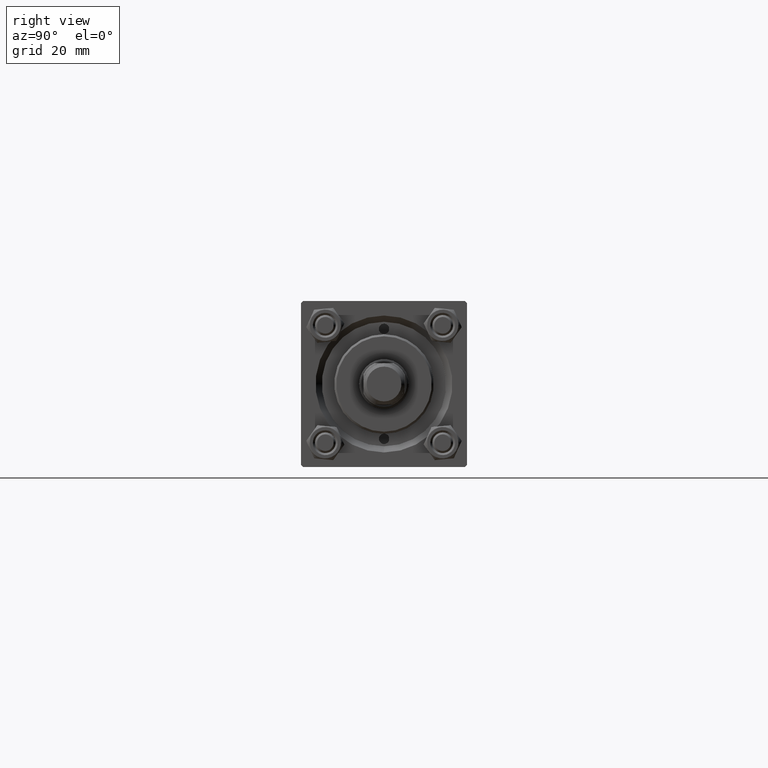
[diagram: clean part render]
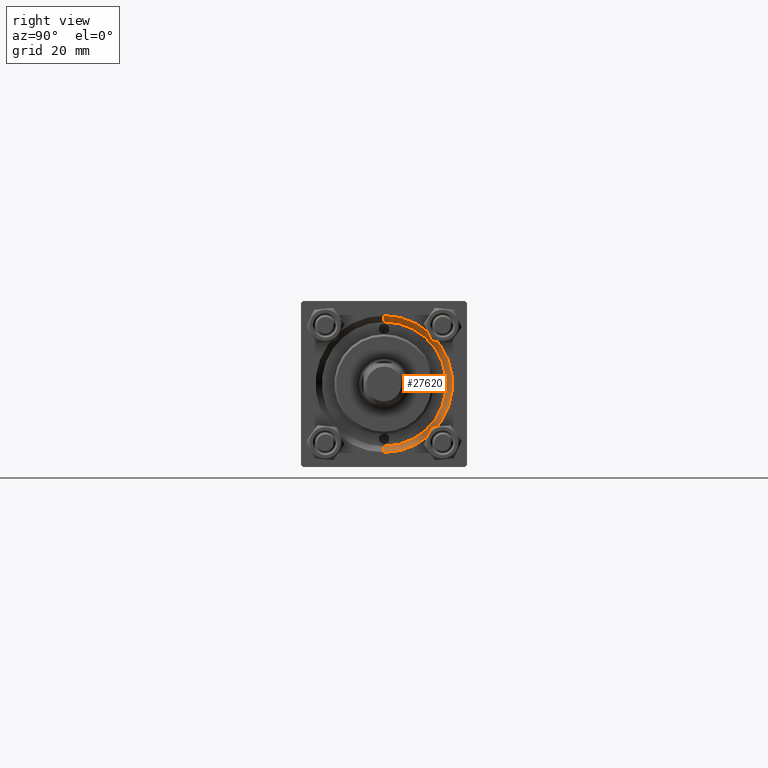
[diagram: same view with one face highlighted and labeled with its STEP entity id]
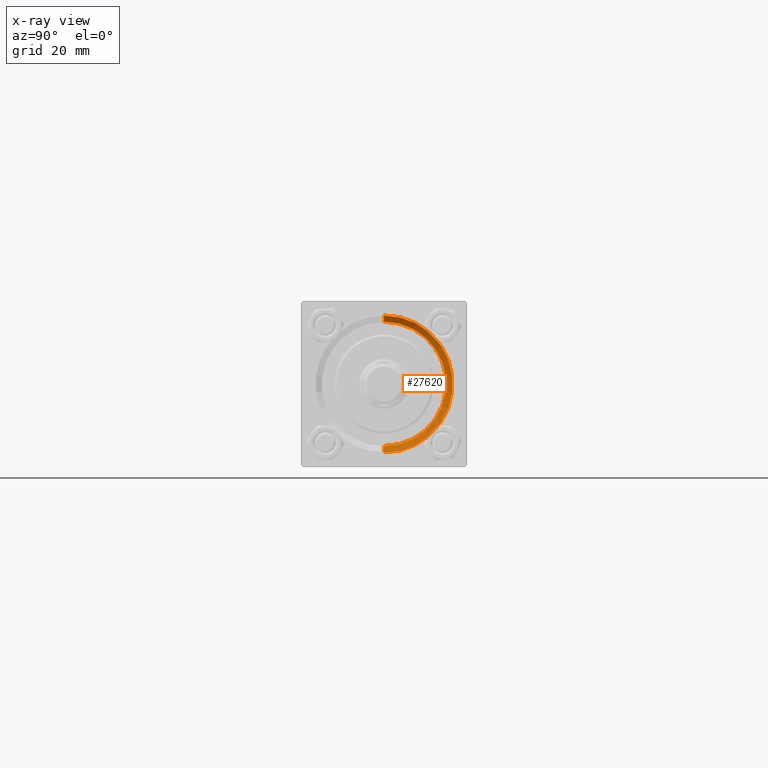
[diagram: x-ray of the same camera — body ghosted, the highlighted face saturated]
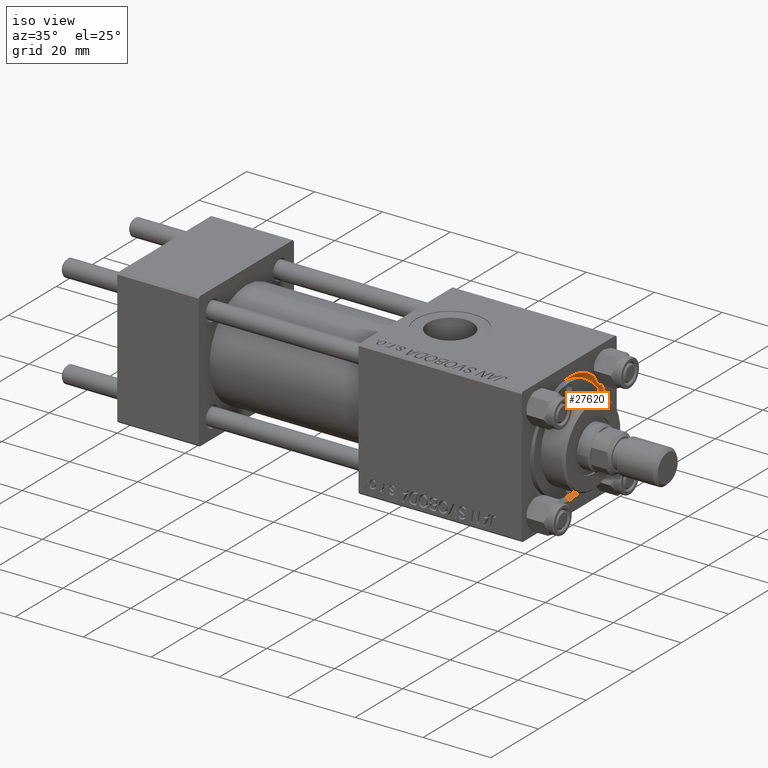
[diagram: same view with one face highlighted and labeled with its STEP entity id]
A machine part, right view. The second image highlights one B-rep face of the part: STEP entity #27620.
The next image is the same camera in x-ray: the body ghosted, the highlighted face saturated — about 0% of this face is hidden behind the body in this view.
A second angle (iso view) of the same face is appended — the face is thin or edge-on in the first view.
In plain terms, the highlighted conical surface has half-angle 45 deg.
Its self-contained STEP definition (entity closure, byte-faithful):
#3750 = CARTESIAN_POINT ( 'NONE',  ( 119.0000000000000142, 2.020667218593134678E-15, 16.50000000000001421 ) ) ;
#4345 = EDGE_CURVE ( 'NONE', #18501, #6028, #36724, .T. ) ;
#5032 = CARTESIAN_POINT ( 'NONE',  ( 117.5000000000000000, 1.836970198721029589E-15, 15.00000000000000000 ) ) ;
#5866 = EDGE_CURVE ( 'NONE', #6028, #34586, #8618, .T. ) ;
#6028 = VERTEX_POINT ( 'NONE', #41454 ) ;
#7302 = ORIENTED_EDGE ( 'NONE', *, *, #41313, .T. ) ;
#7421 = EDGE_CURVE ( 'NONE', #34586, #45827, #19698, .T. ) ;
#7729 = ORIENTED_EDGE ( 'NONE', *, *, #7421, .F. ) ;
#8618 = LINE ( 'NONE', #5032, #34339 ) ;
#10753 = AXIS2_PLACEMENT_3D ( 'NONE', #16845, #36707, #47918 ) ;
#12387 = DIRECTION ( 'NONE',  ( 0.7071067811865474617, 0.000000000000000000, -0.7071067811865474617 ) ) ;
#12994 = EDGE_LOOP ( 'NONE', ( #50405, #25290, #7302, #7729 ) ) ;
#16845 = CARTESIAN_POINT ( 'NONE',  ( 119.0000000000000142, 0.000000000000000000, 0.000000000000000000 ) ) ;
#18501 = VERTEX_POINT ( 'NONE', #45931 ) ;
#19698 = CIRCLE ( 'NONE', #10753, 16.50000000000001421 ) ;
#25290 = ORIENTED_EDGE ( 'NONE', *, *, #4345, .F. ) ;
#25699 = AXIS2_PLACEMENT_3D ( 'NONE', #46412, #38280, #49749 ) ;
#27358 = CARTESIAN_POINT ( 'NONE',  ( 117.5000000000000000, 0.000000000000000000, 0.000000000000000000 ) ) ;
#27620 = ADVANCED_FACE ( 'NONE', ( #37783 ), #47643, .F. ) ;
#27746 = DIRECTION ( 'NONE',  ( 0.7071067811865474617, 8.659560562354932858E-17, 0.7071067811865474617 ) ) ;
#30238 = AXIS2_PLACEMENT_3D ( 'NONE', #27358, #45945, #30684 ) ;
#30684 = DIRECTION ( 'NONE',  ( 0.000000000000000000, 0.000000000000000000, 1.000000000000000000 ) ) ;
#31781 = CARTESIAN_POINT ( 'NONE',  ( 117.5000000000000000, 0.000000000000000000, -15.00000000000000000 ) ) ;
#34339 = VECTOR ( 'NONE', #27746, 1000.000000000000114 ) ;
#34586 = VERTEX_POINT ( 'NONE', #3750 ) ;
#36707 = DIRECTION ( 'NONE',  ( -1.000000000000000000, -0.000000000000000000, -0.000000000000000000 ) ) ;
#36724 = CIRCLE ( 'NONE', #30238, 15.00000000000000000 ) ;
#37783 = FACE_OUTER_BOUND ( 'NONE', #12994, .T. ) ;
#38222 = VECTOR ( 'NONE', #12387, 1000.000000000000114 ) ;
#38280 = DIRECTION ( 'NONE',  ( 1.000000000000000000, 0.000000000000000000, 0.000000000000000000 ) ) ;
#41313 = EDGE_CURVE ( 'NONE', #18501, #45827, #43473, .T. ) ;
#41454 = CARTESIAN_POINT ( 'NONE',  ( 117.5000000000000000, 1.836970198721029589E-15, 15.00000000000000000 ) ) ;
#43473 = LINE ( 'NONE', #31781, #38222 ) ;
#45827 = VERTEX_POINT ( 'NONE', #47452 ) ;
#45931 = CARTESIAN_POINT ( 'NONE',  ( 117.5000000000000000, 0.000000000000000000, -15.00000000000000000 ) ) ;
#45945 = DIRECTION ( 'NONE',  ( 1.000000000000000000, 0.000000000000000000, 0.000000000000000000 ) ) ;
#46412 = CARTESIAN_POINT ( 'NONE',  ( 117.5000000000000000, 0.000000000000000000, 0.000000000000000000 ) ) ;
#47452 = CARTESIAN_POINT ( 'NONE',  ( 119.0000000000000142, 0.000000000000000000, -16.50000000000001421 ) ) ;
#47643 = CONICAL_SURFACE ( 'NONE', #25699, 15.00000000000000000, 0.7853981633974482790 ) ;
#47918 = DIRECTION ( 'NONE',  ( 0.000000000000000000, 0.000000000000000000, 1.000000000000000000 ) ) ;
#49749 = DIRECTION ( 'NONE',  ( 0.000000000000000000, 0.000000000000000000, -1.000000000000000000 ) ) ;
#50405 = ORIENTED_EDGE ( 'NONE', *, *, #5866, .F. ) ;